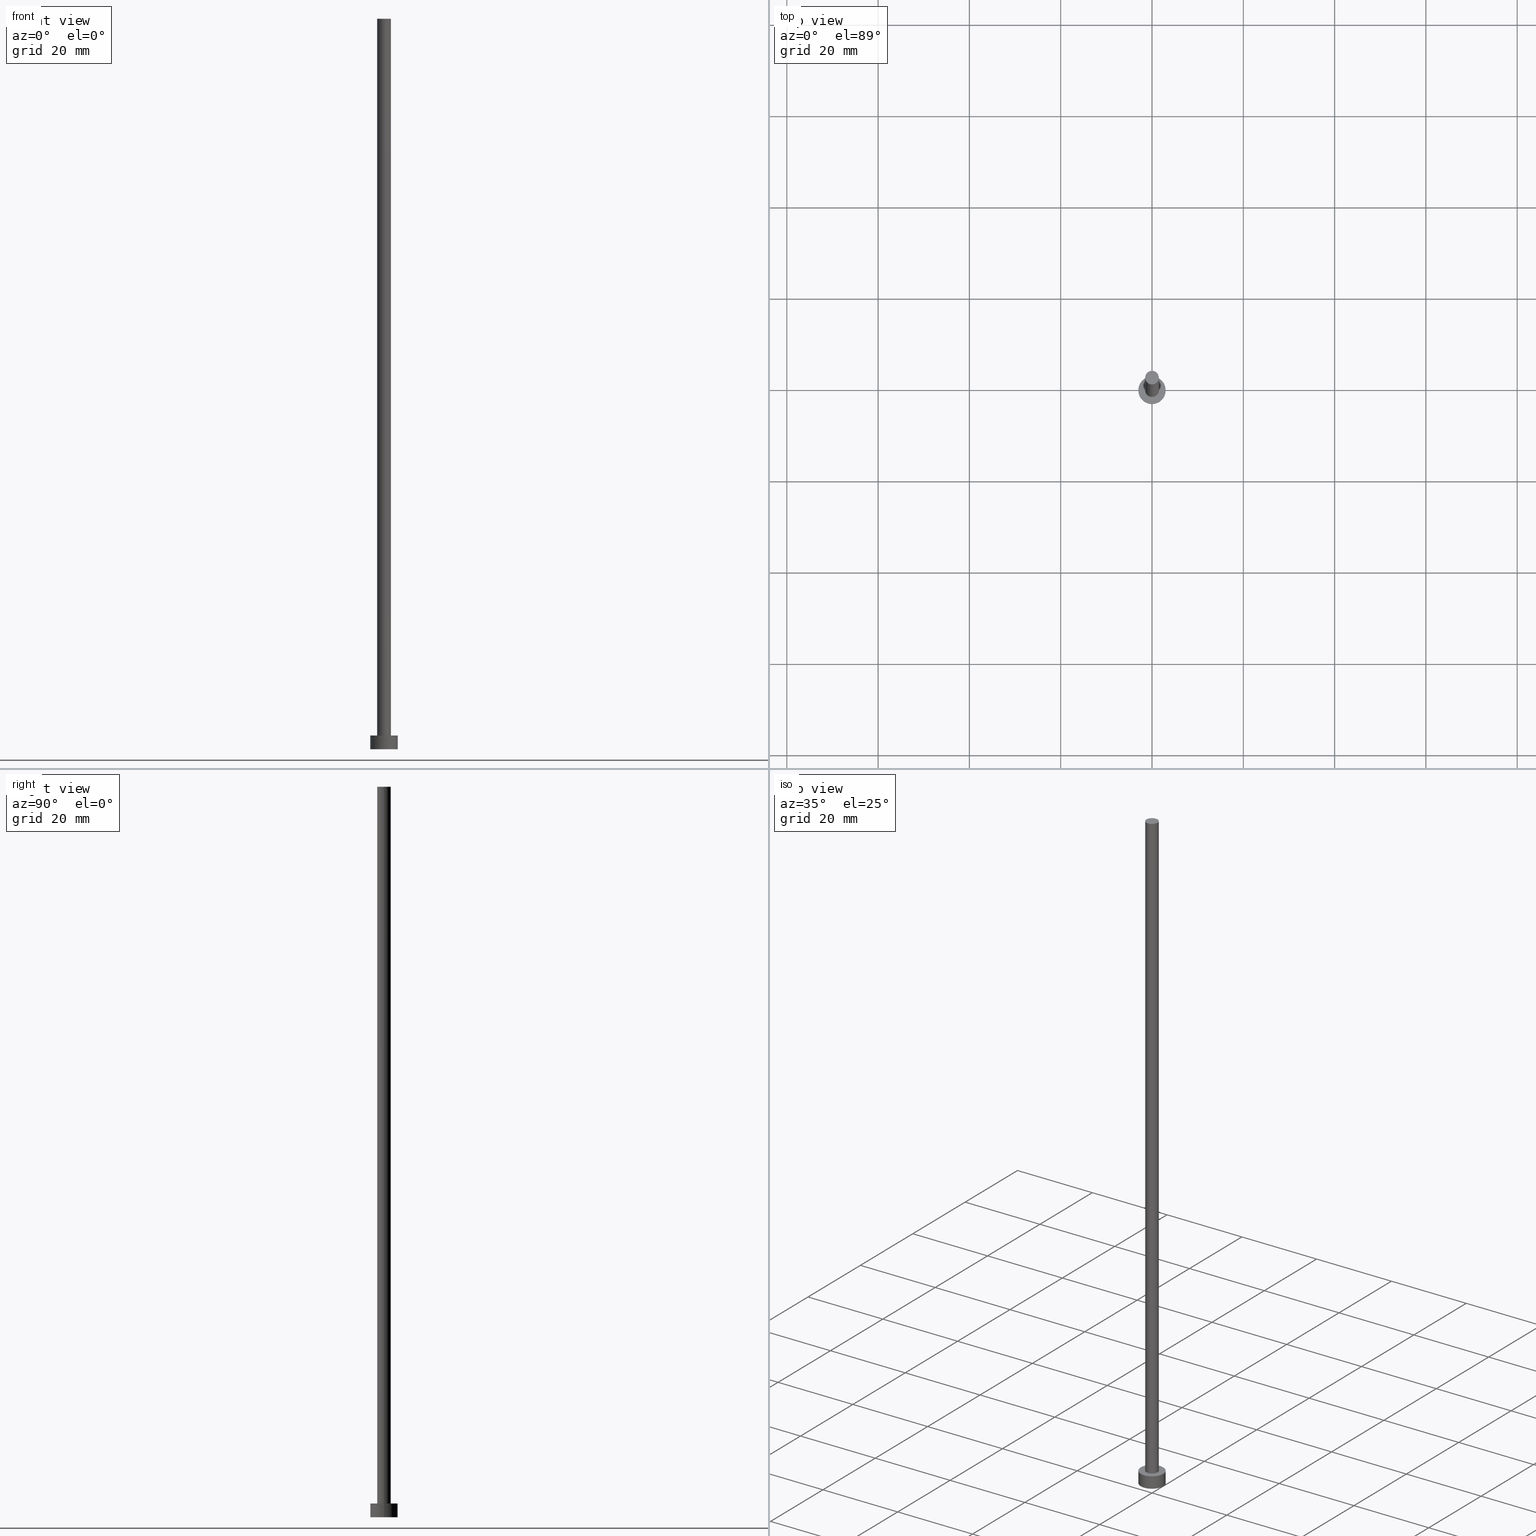
[diagram: canonical four-view strip — front | top / right | iso, engineering-drawing reading convention]
A machine part, canonical four-view strip (front | top / right | iso — engineering-drawing reading convention). The complete STEP part file that produces these views, byte-faithful:
ISO-10303-21;
HEADER;
FILE_DESCRIPTION (( 'STEP AP203' ),
    '1' );
FILE_NAME ('4a45.STEP',
    '2023-02-12T12:47:24',
    ( '' ),
    ( '' ),
    'SwSTEP 2.0',
    'SolidWorks 2019',
    '' );
FILE_SCHEMA (( 'CONFIG_CONTROL_DESIGN' ));
ENDSEC;

DATA;
#1 = APPROVAL ( #214, 'NEUR�EN�' ) ;
#2 = SECURITY_CLASSIFICATION_LEVEL ( 'unclassified' ) ;
#3 = CALENDAR_DATE ( 2023, 12, 2 ) ;
#4 = PERSON_AND_ORGANIZATION ( #45, #21 ) ;
#5 = CIRCLE ( 'NONE', #184, 1.500000000000000222 ) ;
#6 = ORIENTED_EDGE ( 'NONE', *, *, #243, .T. ) ;
#7 = ORIENTED_EDGE ( 'NONE', *, *, #128, .T. ) ;
#8 = ORIENTED_EDGE ( 'NONE', *, *, #59, .T. ) ;
#9 = CARTESIAN_POINT ( 'NONE',  ( -3.000000000000000444, 0.000000000000000000, 0.000000000000000000 ) ) ;
#10 = DIRECTION ( 'NONE',  ( -1.000000000000000000, 0.000000000000000000, 0.000000000000000000 ) ) ;
#11 = PLANE ( 'NONE',  #123 ) ;
#12 = CARTESIAN_POINT ( 'NONE',  ( 1.500000000000000222, 1.836970198721030181E-16, 3.000000000000000000 ) ) ;
#13 = ADVANCED_FACE ( 'NONE', ( #47 ), #234, .T. ) ;
#14 = CC_DESIGN_SECURITY_CLASSIFICATION ( #110, ( #85 ) ) ;
#15 = DATE_AND_TIME ( #51, #98 ) ;
#16 =( GEOMETRIC_REPRESENTATION_CONTEXT ( 3 ) GLOBAL_UNCERTAINTY_ASSIGNED_CONTEXT ( ( #152 ) ) GLOBAL_UNIT_ASSIGNED_CONTEXT ( ( #49, #37, #72 ) ) REPRESENTATION_CONTEXT ( 'NONE', 'WORKASPACE' ) );
#17 = PERSON_AND_ORGANIZATION_ROLE ( 'design_supplier' ) ;
#18 = AXIS2_PLACEMENT_3D ( 'NONE', #161, #50, #30 ) ;
#19 = DIRECTION ( 'NONE',  ( 0.000000000000000000, 0.000000000000000000, 1.000000000000000000 ) ) ;
#20 = DIRECTION ( 'NONE',  ( 1.000000000000000000, 0.000000000000000000, 0.000000000000000000 ) ) ;
#21 = ORGANIZATION ( 'NEUR�EN�', 'NEUR�EN�', '' ) ;
#22 = PERSON_AND_ORGANIZATION_ROLE ( 'design_owner' ) ;
#23 = APPROVAL_PERSON_ORGANIZATION ( #103, #1, #81 ) ;
#24 = PRODUCT ( '4a45', '4a45', '', ( #38 ) ) ;
#25 = DIRECTION ( 'NONE',  ( 1.000000000000000000, 0.000000000000000000, 0.000000000000000000 ) ) ;
#26 = CYLINDRICAL_SURFACE ( 'NONE', #100, 1.500000000000000222 ) ;
#27 = DIRECTION ( 'NONE',  ( 1.000000000000000000, 0.000000000000000000, 0.000000000000000000 ) ) ;
#28 = APPROVAL ( #186, 'NEUR�EN�' ) ;
#29 = LINE ( 'NONE', #31, #116 ) ;
#30 = DIRECTION ( 'NONE',  ( 1.000000000000000000, 0.000000000000000000, -0.000000000000000000 ) ) ;
#31 = CARTESIAN_POINT ( 'NONE',  ( -1.500000000000000222, 0.000000000000000000, 160.0000000000000000 ) ) ;
#32 = DIRECTION ( 'NONE',  ( 1.000000000000000000, 0.000000000000000000, -0.000000000000000000 ) ) ;
#33 = CARTESIAN_POINT ( 'NONE',  ( -3.000000000000000444, 0.000000000000000000, 3.000000000000000000 ) ) ;
#34 = EDGE_CURVE ( 'NONE', #80, #205, #229, .T. ) ;
#35 = PERSON_AND_ORGANIZATION ( #45, #21 ) ;
#36 = CC_DESIGN_PERSON_AND_ORGANIZATION_ASSIGNMENT ( #4, #168, ( #110 ) ) ;
#37 =( NAMED_UNIT ( * ) PLANE_ANGLE_UNIT ( ) SI_UNIT ( $, .RADIAN. ) );
#38 = MECHANICAL_CONTEXT ( 'NONE', #44, 'mechanical' ) ;
#39 = EDGE_LOOP ( 'NONE', ( #90, #238 ) ) ;
#40 = CIRCLE ( 'NONE', #107, 1.500000000000000222 ) ;
#41 = DIRECTION ( 'NONE',  ( 0.000000000000000000, 0.000000000000000000, 1.000000000000000000 ) ) ;
#42 = DIRECTION ( 'NONE',  ( 1.000000000000000000, 0.000000000000000000, 0.000000000000000000 ) ) ;
#43 = VECTOR ( 'NONE', #96, 1000.000000000000000 ) ;
#44 = APPLICATION_CONTEXT ( 'configuration controlled 3d designs of mechanical parts and assemblies' ) ;
#45 = PERSON ( 'NEUR�EN�', 'NEUR�EN�', 'NEUR�EN�', ('NEUR�EN�'), ('NEUR�EN�'), ('NEUR�EN�') ) ;
#46 = DIRECTION ( 'NONE',  ( 0.000000000000000000, 0.000000000000000000, 1.000000000000000000 ) ) ;
#47 = FACE_OUTER_BOUND ( 'NONE', #56, .T. ) ;
#48 = CARTESIAN_POINT ( 'NONE',  ( 0.000000000000000000, 0.000000000000000000, 0.000000000000000000 ) ) ;
#49 =( LENGTH_UNIT ( ) NAMED_UNIT ( * ) SI_UNIT ( .MILLI., .METRE. ) );
#50 = DIRECTION ( 'NONE',  ( 0.000000000000000000, 0.000000000000000000, 1.000000000000000000 ) ) ;
#51 = CALENDAR_DATE ( 2023, 12, 2 ) ;
#52 = PERSON_AND_ORGANIZATION_ROLE ( 'creator' ) ;
#53 = VECTOR ( 'NONE', #212, 1000.000000000000000 ) ;
#54 = APPROVAL_ROLE ( '' ) ;
#55 = CC_DESIGN_PERSON_AND_ORGANIZATION_ASSIGNMENT ( #35, #17, ( #85 ) ) ;
#56 = EDGE_LOOP ( 'NONE', ( #171, #241 ) ) ;
#57 = SHAPE_DEFINITION_REPRESENTATION ( #175, #122 ) ;
#58 = ORIENTED_EDGE ( 'NONE', *, *, #128, .F. ) ;
#59 = EDGE_CURVE ( 'NONE', #202, #187, #5, .T. ) ;
#60 = EDGE_LOOP ( 'NONE', ( #201, #222, #6, #62 ) ) ;
#61 = ADVANCED_FACE ( 'NONE', ( #248, #88 ), #73, .T. ) ;
#62 = ORIENTED_EDGE ( 'NONE', *, *, #162, .T. ) ;
#63 = CYLINDRICAL_SURFACE ( 'NONE', #223, 3.000000000000000444 ) ;
#64 = AXIS2_PLACEMENT_3D ( 'NONE', #126, #19, #20 ) ;
#65 = DIRECTION ( 'NONE',  ( -1.000000000000000000, 0.000000000000000000, 0.000000000000000000 ) ) ;
#66 = DIRECTION ( 'NONE',  ( 0.000000000000000000, 0.000000000000000000, 1.000000000000000000 ) ) ;
#67 = DIRECTION ( 'NONE',  ( -0.000000000000000000, -0.000000000000000000, -1.000000000000000000 ) ) ;
#68 = ORIENTED_EDGE ( 'NONE', *, *, #159, .T. ) ;
#69 = DIRECTION ( 'NONE',  ( 1.000000000000000000, 0.000000000000000000, -0.000000000000000000 ) ) ;
#70 = ORIENTED_EDGE ( 'NONE', *, *, #93, .T. ) ;
#71 = CC_DESIGN_DATE_AND_TIME_ASSIGNMENT ( #15, #167, ( #110 ) ) ;
#72 =( NAMED_UNIT ( * ) SI_UNIT ( $, .STERADIAN. ) SOLID_ANGLE_UNIT ( ) );
#73 = PLANE ( 'NONE',  #18 ) ;
#74 = PERSON_AND_ORGANIZATION_ROLE ( 'creator' ) ;
#75 = CC_DESIGN_DATE_AND_TIME_ASSIGNMENT ( #218, #104, ( #182 ) ) ;
#76 = AXIS2_PLACEMENT_3D ( 'NONE', #231, #148, #193 ) ;
#77 = PERSON_AND_ORGANIZATION ( #45, #21 ) ;
#78 = DATE_AND_TIME ( #3, #189 ) ;
#79 = CC_DESIGN_PERSON_AND_ORGANIZATION_ASSIGNMENT ( #124, #52, ( #85 ) ) ;
#80 = VERTEX_POINT ( 'NONE', #135 ) ;
#81 = APPROVAL_ROLE ( '' ) ;
#82 = AXIS2_PLACEMENT_3D ( 'NONE', #194, #181, #32 ) ;
#83 = ADVANCED_FACE ( 'NONE', ( #213 ), #97, .T. ) ;
#84 = ORIENTED_EDGE ( 'NONE', *, *, #159, .F. ) ;
#85 = PRODUCT_DEFINITION_FORMATION_WITH_SPECIFIED_SOURCE ( 'LIBOVOLN�', '', #24, .NOT_KNOWN. ) ;
#86 = ORIENTED_EDGE ( 'NONE', *, *, #215, .T. ) ;
#87 = DIRECTION ( 'NONE',  ( -0.000000000000000000, -0.000000000000000000, -1.000000000000000000 ) ) ;
#88 = FACE_OUTER_BOUND ( 'NONE', #242, .T. ) ;
#89 = CARTESIAN_POINT ( 'NONE',  ( -1.500000000000000222, 0.000000000000000000, 160.0000000000000000 ) ) ;
#90 = ORIENTED_EDGE ( 'NONE', *, *, #105, .F. ) ;
#91 = APPLICATION_CONTEXT ( 'configuration controlled 3d designs of mechanical parts and assemblies' ) ;
#92 = DIRECTION ( 'NONE',  ( 1.000000000000000000, 0.000000000000000000, 0.000000000000000000 ) ) ;
#93 = EDGE_CURVE ( 'NONE', #170, #158, #204, .T. ) ;
#94 = AXIS2_PLACEMENT_3D ( 'NONE', #236, #136, #65 ) ;
#95 = ORIENTED_EDGE ( 'NONE', *, *, #59, .F. ) ;
#96 = DIRECTION ( 'NONE',  ( -0.000000000000000000, -0.000000000000000000, -1.000000000000000000 ) ) ;
#97 = CYLINDRICAL_SURFACE ( 'NONE', #94, 3.000000000000000444 ) ;
#98 = LOCAL_TIME ( 13, 47, 24.00000000000000000, #101 ) ;
#99 = DATE_AND_TIME ( #188, #206 ) ;
#100 = AXIS2_PLACEMENT_3D ( 'NONE', #118, #177, #114 ) ;
#101 = COORDINATED_UNIVERSAL_TIME_OFFSET ( 1, 0, .AHEAD. ) ;
#102 = VECTOR ( 'NONE', #67, 1000.000000000000000 ) ;
#103 = PERSON_AND_ORGANIZATION ( #45, #21 ) ;
#104 = DATE_TIME_ROLE ( 'creation_date' ) ;
#105 = EDGE_CURVE ( 'NONE', #157, #158, #147, .T. ) ;
#106 = APPROVAL_STATUS ( 'not_yet_approved' ) ;
#107 = AXIS2_PLACEMENT_3D ( 'NONE', #198, #41, #42 ) ;
#108 = CC_DESIGN_PERSON_AND_ORGANIZATION_ASSIGNMENT ( #254, #22, ( #24 ) ) ;
#109 = ORIENTED_EDGE ( 'NONE', *, *, #162, .F. ) ;
#110 = SECURITY_CLASSIFICATION ( '', '', #2 ) ;
#111 = ORIENTED_EDGE ( 'NONE', *, *, #243, .F. ) ;
#112 = CARTESIAN_POINT ( 'NONE',  ( 0.000000000000000000, 0.000000000000000000, 3.000000000000000000 ) ) ;
#113 = DIRECTION ( 'NONE',  ( 0.000000000000000000, 0.000000000000000000, 1.000000000000000000 ) ) ;
#114 = DIRECTION ( 'NONE',  ( -1.000000000000000000, 0.000000000000000000, 0.000000000000000000 ) ) ;
#115 = DIRECTION ( 'NONE',  ( -0.000000000000000000, -0.000000000000000000, -1.000000000000000000 ) ) ;
#116 = VECTOR ( 'NONE', #197, 1000.000000000000000 ) ;
#117 = CARTESIAN_POINT ( 'NONE',  ( 3.000000000000000444, 3.673940397442060361E-16, 3.000000000000000000 ) ) ;
#118 = CARTESIAN_POINT ( 'NONE',  ( 0.000000000000000000, 0.000000000000000000, 160.0000000000000000 ) ) ;
#119 = EDGE_CURVE ( 'NONE', #80, #202, #174, .T. ) ;
#120 = COORDINATED_UNIVERSAL_TIME_OFFSET ( 1, 0, .AHEAD. ) ;
#121 = AXIS2_PLACEMENT_3D ( 'NONE', #134, #46, #92 ) ;
#122 = ADVANCED_BREP_SHAPE_REPRESENTATION ( '4a45', ( #137, #64 ), #16 ) ;
#123 = AXIS2_PLACEMENT_3D ( 'NONE', #251, #172, #69 ) ;
#124 = PERSON_AND_ORGANIZATION ( #45, #21 ) ;
#125 = PERSON_AND_ORGANIZATION ( #45, #21 ) ;
#126 = CARTESIAN_POINT ( 'NONE',  ( 0.000000000000000000, 0.000000000000000000, 0.000000000000000000 ) ) ;
#127 = ORIENTED_EDGE ( 'NONE', *, *, #119, .T. ) ;
#128 = EDGE_CURVE ( 'NONE', #227, #157, #226, .T. ) ;
#129 = DESIGN_CONTEXT ( 'detailed design', #91, 'design' ) ;
#130 = DIRECTION ( 'NONE',  ( 0.000000000000000000, 0.000000000000000000, 1.000000000000000000 ) ) ;
#131 = CARTESIAN_POINT ( 'NONE',  ( 0.000000000000000000, 0.000000000000000000, 3.000000000000000000 ) ) ;
#132 = CARTESIAN_POINT ( 'NONE',  ( 0.000000000000000000, 0.000000000000000000, 3.000000000000000000 ) ) ;
#133 = DIRECTION ( 'NONE',  ( 1.000000000000000000, 0.000000000000000000, 0.000000000000000000 ) ) ;
#134 = CARTESIAN_POINT ( 'NONE',  ( 0.000000000000000000, 0.000000000000000000, 0.000000000000000000 ) ) ;
#135 = CARTESIAN_POINT ( 'NONE',  ( 1.500000000000000222, 1.836970198721030181E-16, 160.0000000000000000 ) ) ;
#136 = DIRECTION ( 'NONE',  ( -0.000000000000000000, -0.000000000000000000, -1.000000000000000000 ) ) ;
#137 = MANIFOLD_SOLID_BREP ( 'P�idat vysunut�m3', #200 ) ;
#138 = ADVANCED_FACE ( 'NONE', ( #253 ), #150, .T. ) ;
#139 = CALENDAR_DATE ( 2023, 12, 2 ) ;
#140 = PRODUCT_RELATED_PRODUCT_CATEGORY ( 'detail', '', ( #24 ) ) ;
#141 = CC_DESIGN_APPROVAL ( #211, ( #110 ) ) ;
#142 = APPLICATION_PROTOCOL_DEFINITION ( 'international standard', 'config_control_design', 1994, #44 ) ;
#143 = ORIENTED_EDGE ( 'NONE', *, *, #105, .T. ) ;
#144 = APPLICATION_PROTOCOL_DEFINITION ( 'international standard', 'config_control_design', 1994, #91 ) ;
#145 = EDGE_LOOP ( 'NONE', ( #109, #95 ) ) ;
#146 = LOCAL_TIME ( 13, 47, 24.00000000000000000, #199 ) ;
#147 = CIRCLE ( 'NONE', #225, 3.000000000000000444 ) ;
#148 = DIRECTION ( 'NONE',  ( 0.000000000000000000, 0.000000000000000000, 1.000000000000000000 ) ) ;
#149 = EDGE_LOOP ( 'NONE', ( #154, #84, #7, #143 ) ) ;
#150 = CYLINDRICAL_SURFACE ( 'NONE', #196, 1.500000000000000222 ) ;
#151 = EDGE_LOOP ( 'NONE', ( #246, #127, #8, #111 ) ) ;
#152 = UNCERTAINTY_MEASURE_WITH_UNIT (LENGTH_MEASURE( 1.000000000000000082E-05 ), #49, 'distance_accuracy_value', 'NONE');
#153 = CARTESIAN_POINT ( 'NONE',  ( 1.500000000000000222, 1.836970198721030181E-16, 160.0000000000000000 ) ) ;
#154 = ORIENTED_EDGE ( 'NONE', *, *, #93, .F. ) ;
#155 = EDGE_CURVE ( 'NONE', #205, #80, #40, .T. ) ;
#156 = CARTESIAN_POINT ( 'NONE',  ( 3.000000000000000444, 3.673940397442060361E-16, 0.000000000000000000 ) ) ;
#157 = VERTEX_POINT ( 'NONE', #9 ) ;
#158 = VERTEX_POINT ( 'NONE', #156 ) ;
#159 = EDGE_CURVE ( 'NONE', #227, #170, #249, .T. ) ;
#160 = APPROVAL_DATE_TIME ( #163, #1 ) ;
#161 = CARTESIAN_POINT ( 'NONE',  ( 0.000000000000000000, 0.000000000000000000, 3.000000000000000000 ) ) ;
#162 = EDGE_CURVE ( 'NONE', #187, #202, #224, .T. ) ;
#163 = DATE_AND_TIME ( #139, #146 ) ;
#164 = ADVANCED_FACE ( 'NONE', ( #195 ), #63, .T. ) ;
#165 = CC_DESIGN_PERSON_AND_ORGANIZATION_ASSIGNMENT ( #77, #74, ( #182 ) ) ;
#166 = CALENDAR_DATE ( 2023, 12, 2 ) ;
#167 = DATE_TIME_ROLE ( 'classification_date' ) ;
#168 = PERSON_AND_ORGANIZATION_ROLE ( 'classification_officer' ) ;
#169 = LOCAL_TIME ( 13, 47, 24.00000000000000000, #221 ) ;
#170 = VERTEX_POINT ( 'NONE', #117 ) ;
#171 = ORIENTED_EDGE ( 'NONE', *, *, #155, .T. ) ;
#172 = DIRECTION ( 'NONE',  ( 0.000000000000000000, 0.000000000000000000, 1.000000000000000000 ) ) ;
#173 = ADVANCED_FACE ( 'NONE', ( #178 ), #11, .F. ) ;
#174 = LINE ( 'NONE', #153, #102 ) ;
#175 = PRODUCT_DEFINITION_SHAPE ( 'NONE', 'NONE',  #182 ) ;
#176 = DIRECTION ( 'NONE',  ( 0.000000000000000000, 0.000000000000000000, 1.000000000000000000 ) ) ;
#177 = DIRECTION ( 'NONE',  ( -0.000000000000000000, -0.000000000000000000, -1.000000000000000000 ) ) ;
#178 = FACE_OUTER_BOUND ( 'NONE', #39, .T. ) ;
#179 = DIRECTION ( 'NONE',  ( 1.000000000000000000, 0.000000000000000000, 0.000000000000000000 ) ) ;
#180 = EDGE_CURVE ( 'NONE', #158, #157, #210, .T. ) ;
#181 = DIRECTION ( 'NONE',  ( 0.000000000000000000, 0.000000000000000000, 1.000000000000000000 ) ) ;
#182 = PRODUCT_DEFINITION ( 'NEZN�M�', '', #85, #129 ) ;
#183 = CC_DESIGN_APPROVAL ( #1, ( #182 ) ) ;
#184 = AXIS2_PLACEMENT_3D ( 'NONE', #132, #176, #179 ) ;
#185 = PERSON_AND_ORGANIZATION ( #45, #21 ) ;
#186 = APPROVAL_STATUS ( 'not_yet_approved' ) ;
#187 = VERTEX_POINT ( 'NONE', #228 ) ;
#188 = CALENDAR_DATE ( 2023, 12, 2 ) ;
#189 = LOCAL_TIME ( 13, 47, 24.00000000000000000, #120 ) ;
#190 = ORIENTED_EDGE ( 'NONE', *, *, #180, .T. ) ;
#191 = ADVANCED_FACE ( 'NONE', ( #208 ), #26, .T. ) ;
#192 = EDGE_LOOP ( 'NONE', ( #244, #70, #190, #58 ) ) ;
#193 = DIRECTION ( 'NONE',  ( 1.000000000000000000, 0.000000000000000000, 0.000000000000000000 ) ) ;
#194 = CARTESIAN_POINT ( 'NONE',  ( 0.000000000000000000, 0.000000000000000000, 160.0000000000000000 ) ) ;
#195 = FACE_OUTER_BOUND ( 'NONE', #149, .T. ) ;
#196 = AXIS2_PLACEMENT_3D ( 'NONE', #207, #115, #230 ) ;
#197 = DIRECTION ( 'NONE',  ( -0.000000000000000000, -0.000000000000000000, -1.000000000000000000 ) ) ;
#198 = CARTESIAN_POINT ( 'NONE',  ( 0.000000000000000000, 0.000000000000000000, 160.0000000000000000 ) ) ;
#199 = COORDINATED_UNIVERSAL_TIME_OFFSET ( 1, 0, .AHEAD. ) ;
#200 = CLOSED_SHELL ( 'NONE', ( #138, #83, #164, #61, #173, #191, #13 ) ) ;
#201 = ORIENTED_EDGE ( 'NONE', *, *, #119, .F. ) ;
#202 = VERTEX_POINT ( 'NONE', #12 ) ;
#203 = AXIS2_PLACEMENT_3D ( 'NONE', #232, #113, #27 ) ;
#204 = LINE ( 'NONE', #219, #53 ) ;
#205 = VERTEX_POINT ( 'NONE', #89 ) ;
#206 = LOCAL_TIME ( 13, 47, 24.00000000000000000, #220 ) ;
#207 = CARTESIAN_POINT ( 'NONE',  ( 0.000000000000000000, 0.000000000000000000, 160.0000000000000000 ) ) ;
#208 = FACE_OUTER_BOUND ( 'NONE', #60, .T. ) ;
#209 = CARTESIAN_POINT ( 'NONE',  ( -3.000000000000000444, 0.000000000000000000, 3.000000000000000000 ) ) ;
#210 = CIRCLE ( 'NONE', #121, 3.000000000000000444 ) ;
#211 = APPROVAL ( #106, 'NEUR�EN�' ) ;
#212 = DIRECTION ( 'NONE',  ( -0.000000000000000000, -0.000000000000000000, -1.000000000000000000 ) ) ;
#213 = FACE_OUTER_BOUND ( 'NONE', #192, .T. ) ;
#214 = APPROVAL_STATUS ( 'not_yet_approved' ) ;
#215 = EDGE_CURVE ( 'NONE', #170, #227, #237, .T. ) ;
#216 = APPROVAL_ROLE ( '' ) ;
#217 = CC_DESIGN_APPROVAL ( #28, ( #85 ) ) ;
#218 = DATE_AND_TIME ( #166, #169 ) ;
#219 = CARTESIAN_POINT ( 'NONE',  ( 3.000000000000000444, 3.673940397442060361E-16, 3.000000000000000000 ) ) ;
#220 = COORDINATED_UNIVERSAL_TIME_OFFSET ( 1, 0, .AHEAD. ) ;
#221 = COORDINATED_UNIVERSAL_TIME_OFFSET ( 1, 0, .AHEAD. ) ;
#222 = ORIENTED_EDGE ( 'NONE', *, *, #155, .F. ) ;
#223 = AXIS2_PLACEMENT_3D ( 'NONE', #112, #87, #10 ) ;
#224 = CIRCLE ( 'NONE', #255, 1.500000000000000222 ) ;
#225 = AXIS2_PLACEMENT_3D ( 'NONE', #48, #130, #250 ) ;
#226 = LINE ( 'NONE', #33, #43 ) ;
#227 = VERTEX_POINT ( 'NONE', #209 ) ;
#228 = CARTESIAN_POINT ( 'NONE',  ( -1.500000000000000222, 0.000000000000000000, 3.000000000000000000 ) ) ;
#229 = CIRCLE ( 'NONE', #203, 1.500000000000000222 ) ;
#230 = DIRECTION ( 'NONE',  ( -1.000000000000000000, 0.000000000000000000, 0.000000000000000000 ) ) ;
#231 = CARTESIAN_POINT ( 'NONE',  ( 0.000000000000000000, 0.000000000000000000, 3.000000000000000000 ) ) ;
#232 = CARTESIAN_POINT ( 'NONE',  ( 0.000000000000000000, 0.000000000000000000, 160.0000000000000000 ) ) ;
#233 = APPROVAL_PERSON_ORGANIZATION ( #125, #28, #216 ) ;
#234 = PLANE ( 'NONE',  #82 ) ;
#235 = APPROVAL_DATE_TIME ( #78, #28 ) ;
#236 = CARTESIAN_POINT ( 'NONE',  ( 0.000000000000000000, 0.000000000000000000, 3.000000000000000000 ) ) ;
#237 = CIRCLE ( 'NONE', #240, 3.000000000000000444 ) ;
#238 = ORIENTED_EDGE ( 'NONE', *, *, #180, .F. ) ;
#239 = APPROVAL_DATE_TIME ( #99, #211 ) ;
#240 = AXIS2_PLACEMENT_3D ( 'NONE', #247, #66, #133 ) ;
#241 = ORIENTED_EDGE ( 'NONE', *, *, #34, .T. ) ;
#242 = EDGE_LOOP ( 'NONE', ( #68, #86 ) ) ;
#243 = EDGE_CURVE ( 'NONE', #205, #187, #29, .T. ) ;
#244 = ORIENTED_EDGE ( 'NONE', *, *, #215, .F. ) ;
#245 = DIRECTION ( 'NONE',  ( 0.000000000000000000, 0.000000000000000000, 1.000000000000000000 ) ) ;
#246 = ORIENTED_EDGE ( 'NONE', *, *, #34, .F. ) ;
#247 = CARTESIAN_POINT ( 'NONE',  ( 0.000000000000000000, 0.000000000000000000, 3.000000000000000000 ) ) ;
#248 = FACE_BOUND ( 'NONE', #145, .T. ) ;
#249 = CIRCLE ( 'NONE', #76, 3.000000000000000444 ) ;
#250 = DIRECTION ( 'NONE',  ( 1.000000000000000000, 0.000000000000000000, 0.000000000000000000 ) ) ;
#251 = CARTESIAN_POINT ( 'NONE',  ( 0.000000000000000000, 0.000000000000000000, 0.000000000000000000 ) ) ;
#252 = APPROVAL_PERSON_ORGANIZATION ( #185, #211, #54 ) ;
#253 = FACE_OUTER_BOUND ( 'NONE', #151, .T. ) ;
#254 = PERSON_AND_ORGANIZATION ( #45, #21 ) ;
#255 = AXIS2_PLACEMENT_3D ( 'NONE', #131, #245, #25 ) ;
ENDSEC;
END-ISO-10303-21;
